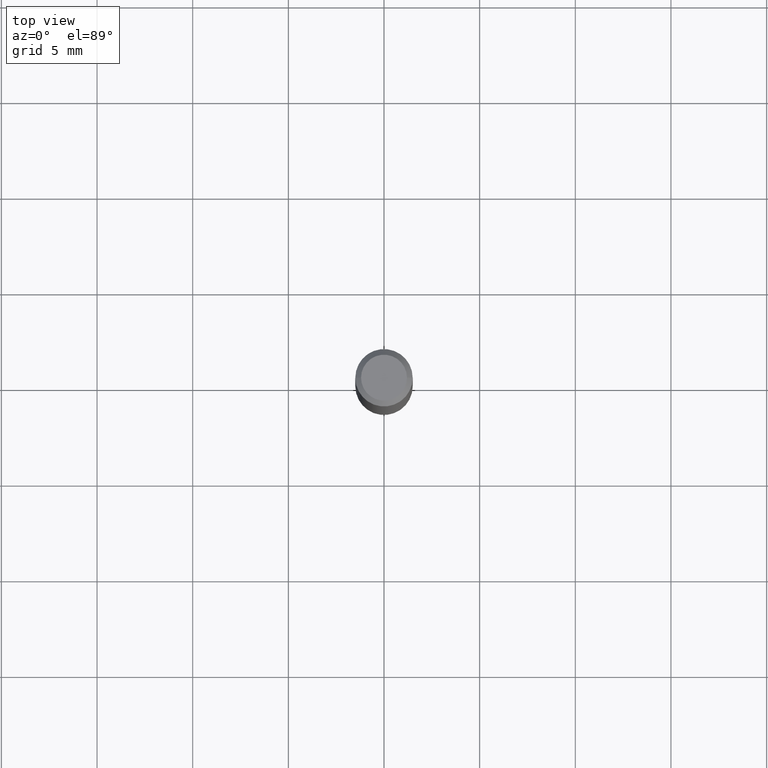
[diagram: clean part render]
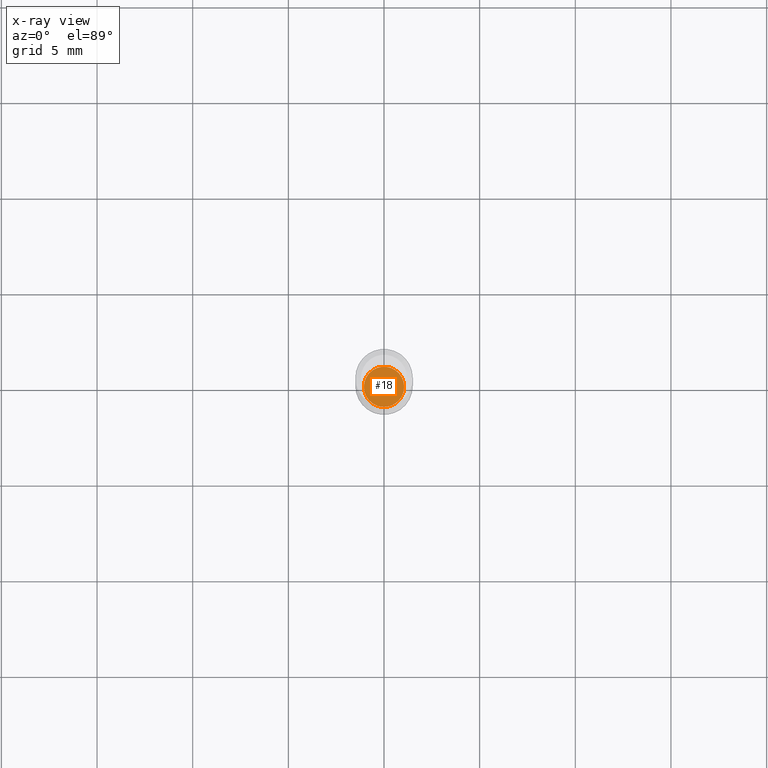
[diagram: x-ray — body ghosted, one internal face saturated and labeled with its STEP entity id]
A machine part, top view, then the same camera in x-ray: the body is ghosted and one INTERNAL B-rep face — a face not visible from any outside direction — is saturated and labeled: STEP entity #18.
In plain terms, the highlighted planar face has unit normal (-0, 0, 1).
Its self-contained STEP definition (entity closure, byte-faithful):
#18 = ADVANCED_FACE ( 'NONE', ( #182 ), #231, .F. ) ;
#44 = DIRECTION ( 'NONE',  ( 1.000000000000000000, -6.982962677686266711E-15, 0.000000000000000000 ) ) ;
#64 = ORIENTED_EDGE ( 'NONE', *, *, #327, .F. ) ;
#93 = EDGE_CURVE ( 'NONE', #367, #244, #321, .T. ) ;
#95 = EDGE_LOOP ( 'NONE', ( #357, #64 ) ) ;
#102 = AXIS2_PLACEMENT_3D ( 'NONE', #303, #149, #44 ) ;
#110 = AXIS2_PLACEMENT_3D ( 'NONE', #410, #453, #311 ) ;
#149 = DIRECTION ( 'NONE',  ( -2.445468806185136597E-29, 3.491481338843145583E-15, 1.000000000000000000 ) ) ;
#182 = FACE_OUTER_BOUND ( 'NONE', #95, .T. ) ;
#184 = DIRECTION ( 'NONE',  ( 1.000000000000000000, -6.982962677686266711E-15, 0.000000000000000000 ) ) ;
#218 = CARTESIAN_POINT ( 'NONE',  ( 0.04145000000000000073, -4.110870128353919109E-15, -1.094500000000000028 ) ) ;
#231 = PLANE ( 'NONE',  #110 ) ;
#244 = VERTEX_POINT ( 'NONE', #475 ) ;
#248 = CIRCLE ( 'NONE', #406, 0.04145000000000000073 ) ;
#303 = CARTESIAN_POINT ( 'NONE',  ( 2.676565608369632355E-29, -3.821426325363822773E-15, -1.094500000000000028 ) ) ;
#311 = DIRECTION ( 'NONE',  ( 1.000000000000000000, -6.982962677686265922E-15, 4.876176775795935793E-29 ) ) ;
#321 = CIRCLE ( 'NONE', #102, 0.04145000000000000073 ) ;
#327 = EDGE_CURVE ( 'NONE', #244, #367, #248, .T. ) ;
#357 = ORIENTED_EDGE ( 'NONE', *, *, #93, .F. ) ;
#367 = VERTEX_POINT ( 'NONE', #218 ) ;
#406 = AXIS2_PLACEMENT_3D ( 'NONE', #490, #452, #184 ) ;
#410 = CARTESIAN_POINT ( 'NONE',  ( 1.579755384345491432E-30, -7.428190654755302836E-15, -1.094500000000000028 ) ) ;
#452 = DIRECTION ( 'NONE',  ( -2.445468806185136597E-29, 3.491481338843145583E-15, 1.000000000000000000 ) ) ;
#453 = DIRECTION ( 'NONE',  ( -2.438088387897960049E-29, 3.491481338843145188E-15, 1.000000000000000000 ) ) ;
#475 = CARTESIAN_POINT ( 'NONE',  ( -0.04145000000000000073, -3.524257134217150139E-15, -1.094500000000000028 ) ) ;
#490 = CARTESIAN_POINT ( 'NONE',  ( 2.676565608369632355E-29, -3.821426325363822773E-15, -1.094500000000000028 ) ) ;